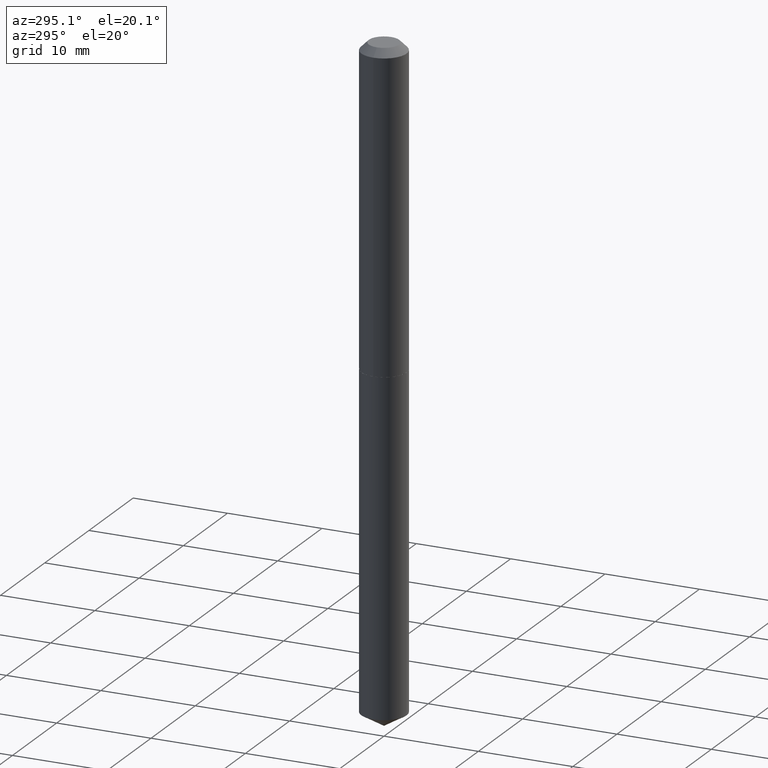
[diagram: clean part render]
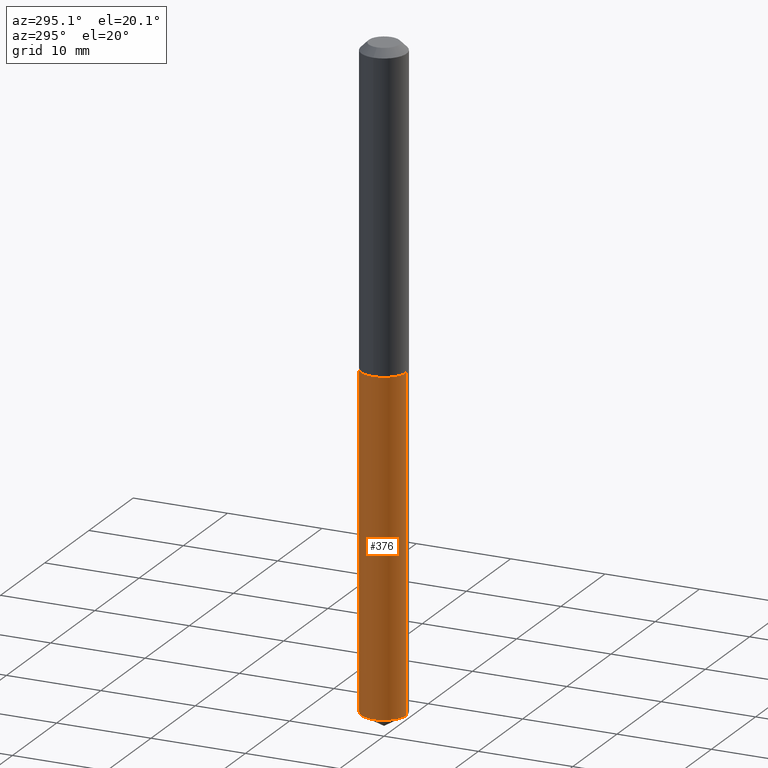
[diagram: same view with one face highlighted and labeled with its STEP entity id]
A machine part, auxiliary view. The second image highlights one B-rep face of the part: STEP entity #376.
In plain terms, the highlighted cylindrical surface (edge-blend (fillet) strip) has radius 2.4003 mm, axis along (-0, 0, 1).
Its self-contained STEP definition (entity closure, byte-faithful):
#13 = AXIS2_PLACEMENT_3D ( 'NONE', #366, #90, #209 ) ;
#20 = VERTEX_POINT ( 'NONE', #246 ) ;
#28 = AXIS2_PLACEMENT_3D ( 'NONE', #68, #314, #182 ) ;
#32 = LINE ( 'NONE', #211, #296 ) ;
#37 = DIRECTION ( 'NONE',  ( -2.445415660206723986E-29, 3.491557446909113942E-15, 1.000000000000000000 ) ) ;
#39 = DIRECTION ( 'NONE',  ( -2.445415660206723705E-29, 3.491557446909113942E-15, 1.000000000000000000 ) ) ;
#53 = ORIENTED_EDGE ( 'NONE', *, *, #278, .T. ) ;
#62 = EDGE_CURVE ( 'NONE', #78, #20, #32, .T. ) ;
#68 = CARTESIAN_POINT ( 'NONE',  ( 3.213346011327269067E-29, -4.587806479239893606E-15, -1.314000000000000057 ) ) ;
#77 = EDGE_CURVE ( 'NONE', #20, #273, #159, .T. ) ;
#78 = VERTEX_POINT ( 'NONE', #337 ) ;
#85 = CIRCLE ( 'NONE', #383, 0.09449999999999998679 ) ;
#90 = DIRECTION ( 'NONE',  ( -2.445415660206723986E-29, 3.491557446909113942E-15, 1.000000000000000000 ) ) ;
#128 = CARTESIAN_POINT ( 'NONE',  ( -6.598899730413198687E-16, -0.09450000000000458034, -1.313999999999999613 ) ) ;
#151 = DIRECTION ( 'NONE',  ( -2.445415660206723705E-29, 3.491557446909113942E-15, 1.000000000000000000 ) ) ;
#155 = EDGE_CURVE ( 'NONE', #78, #204, #85, .T. ) ;
#159 = CIRCLE ( 'NONE', #13, 0.09449999999999998679 ) ;
#182 = DIRECTION ( 'NONE',  ( -6.982962677686265922E-15, -1.000000000000000000, 2.890844437739961472E-15 ) ) ;
#184 = CARTESIAN_POINT ( 'NONE',  ( 6.586108949467517170E-29, -9.403427702638431539E-15, -2.693218671501895756 ) ) ;
#200 = ORIENTED_EDGE ( 'NONE', *, *, #62, .F. ) ;
#204 = VERTEX_POINT ( 'NONE', #310 ) ;
#209 = DIRECTION ( 'NONE',  ( -6.982962677686265922E-15, -1.000000000000000000, 2.890844437739961472E-15 ) ) ;
#211 = CARTESIAN_POINT ( 'NONE',  ( 6.714628852933266292E-16, 0.09449999999999539324, -1.314000000000000279 ) ) ;
#217 = FACE_OUTER_BOUND ( 'NONE', #267, .T. ) ;
#234 = ORIENTED_EDGE ( 'NONE', *, *, #155, .T. ) ;
#238 = DIRECTION ( 'NONE',  ( -6.982962677686265922E-15, -1.000000000000000000, 5.781688875479922944E-15 ) ) ;
#246 = CARTESIAN_POINT ( 'NONE',  ( 6.714628852933606489E-16, 0.09449999999999539324, -1.314000000000000279 ) ) ;
#267 = EDGE_LOOP ( 'NONE', ( #200, #234, #53, #388 ) ) ;
#273 = VERTEX_POINT ( 'NONE', #128 ) ;
#278 = EDGE_CURVE ( 'NONE', #204, #273, #312, .T. ) ;
#296 = VECTOR ( 'NONE', #151, 39.37007874015748143 ) ;
#310 = CARTESIAN_POINT ( 'NONE',  ( -6.598899730412861449E-16, -0.09450000000000939593, -2.693218671501894868 ) ) ;
#312 = LINE ( 'NONE', #342, #341 ) ;
#314 = DIRECTION ( 'NONE',  ( -2.445415660206723986E-29, 3.491557446909113942E-15, 1.000000000000000000 ) ) ;
#337 = CARTESIAN_POINT ( 'NONE',  ( 6.714628852933602544E-16, 0.09449999999999056377, -2.693218671501896200 ) ) ;
#341 = VECTOR ( 'NONE', #39, 39.37007874015748143 ) ;
#342 = CARTESIAN_POINT ( 'NONE',  ( -6.598899730413198687E-16, -0.09450000000000458034, -1.313999999999999613 ) ) ;
#346 = CYLINDRICAL_SURFACE ( 'NONE', #28, 0.09449999999999998679 ) ;
#366 = CARTESIAN_POINT ( 'NONE',  ( 3.213346011327269067E-29, -4.587806479239893606E-15, -1.314000000000000057 ) ) ;
#376 = ADVANCED_FACE ( 'NONE', ( #217 ), #346, .T. ) ;
#383 = AXIS2_PLACEMENT_3D ( 'NONE', #184, #37, #238 ) ;
#388 = ORIENTED_EDGE ( 'NONE', *, *, #77, .F. ) ;